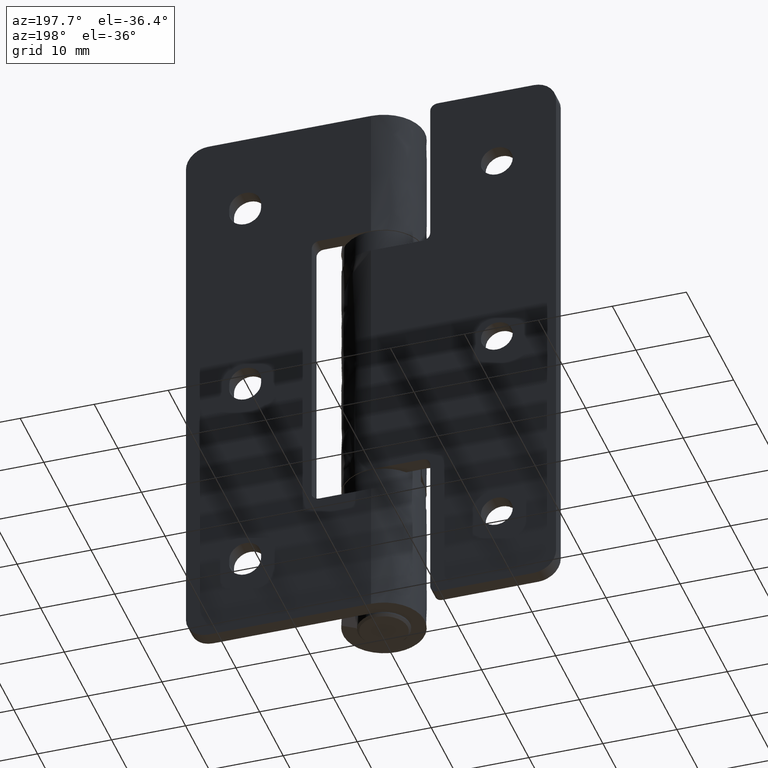
[diagram: clean part render]
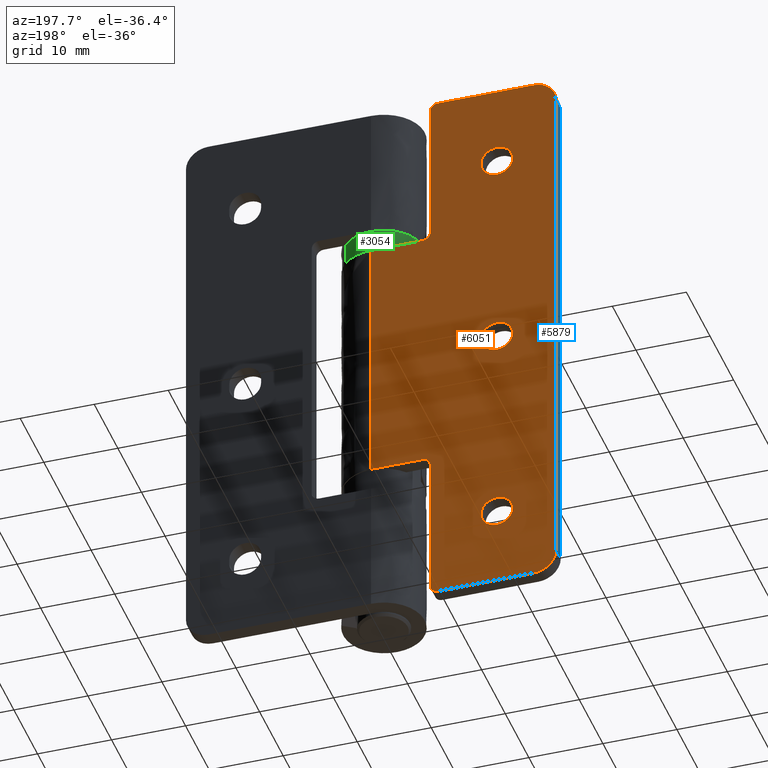
[diagram: same view with three faces highlighted in distinct colors, each labeled with its STEP entity id]
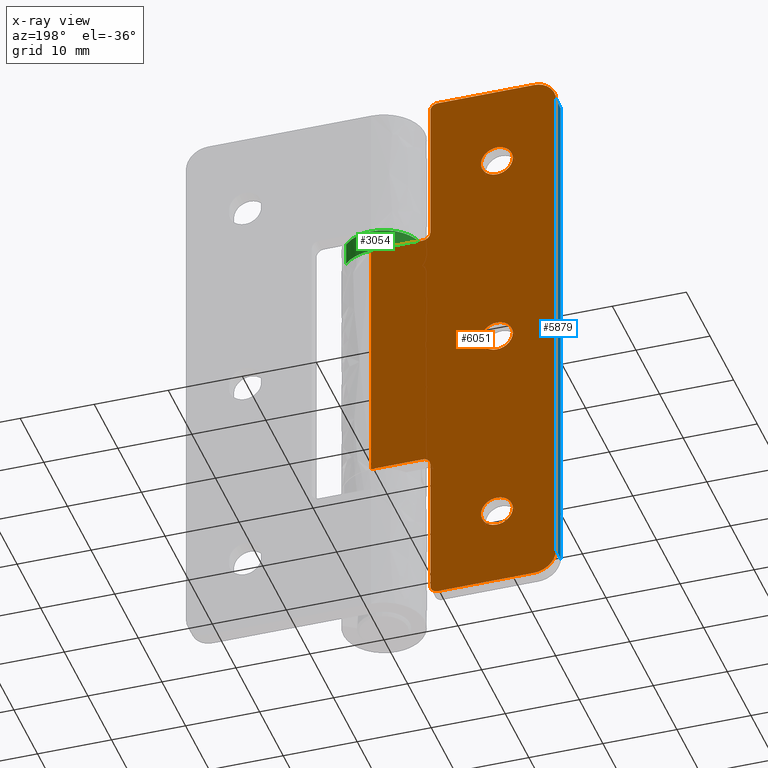
[diagram: x-ray of the same camera — body ghosted, the three highlighted faces saturated]
A machine part, auxiliary view with three faces highlighted in distinct colors.
The next image is the same camera in x-ray (body ghosted, the three faces saturated) — at least one of them is partly hidden behind the body in this view.
Their STEP definitions:

[orange] entity #6051 — the highlighted face is a freeform B-spline surface patch.
#4969=CARTESIAN_POINT('',(-15.547480945484500,5.500000000000229,37.414853445608173));
#4970=VERTEX_POINT('',#4969);
#4976=CARTESIAN_POINT('',(-16.999998877000081,5.500000000000229,36.850000000000300));
#4977=VERTEX_POINT('',#4976);
#4978=CARTESIAN_POINT('',(-16.999998877000081,5.500000000000229,36.850000000000300));
#4979=CARTESIAN_POINT('',(-16.717539007965659,5.500000000000223,36.849676340151682));
#4980=CARTESIAN_POINT('',(-16.186230449595861,5.500000000000251,36.956407735311053));
#4981=CARTESIAN_POINT('',(-15.731095294132510,5.500000000000215,37.246348218408400));
#4982=CARTESIAN_POINT('',(-15.547480945484500,5.500000000000229,37.414853445608173));
#4983=B_SPLINE_CURVE_WITH_KNOTS('',3,(#4978,#4979,#4980,#4981,#4982),.UNSPECIFIED.,.F.,.U.,(4,1,4),(0.000000028332201,0.847246262644758,1.594829172264955),.UNSPECIFIED.);
#4984=EDGE_CURVE('',#4977,#4970,#4983,.T.);
#4986=CARTESIAN_POINT('',(-19.149999999999999,5.500000000000229,39.0));
#4987=VERTEX_POINT('',#4986);
#4988=CARTESIAN_POINT('',(-19.149999999999999,5.500000000000229,39.0));
#4989=CARTESIAN_POINT('',(-19.150196301402779,5.500000000000226,38.753710343611750));
#4990=CARTESIAN_POINT('',(-19.088863383041961,5.500000000000235,38.402051418261728));
#4991=CARTESIAN_POINT('',(-18.888701359350758,5.500000000000229,37.950566378920144));
#4992=CARTESIAN_POINT('',(-18.672690833419349,5.500000000000224,37.627256662800328));
#4993=CARTESIAN_POINT('',(-18.385230024619212,5.500000000000233,37.339828051271468));
#4994=CARTESIAN_POINT('',(-18.006755906459759,5.500000000000276,37.080076261352261));
#4995=CARTESIAN_POINT('',(-17.545269801628908,5.500000000000118,36.895561486111831));
#4996=CARTESIAN_POINT('',(-17.175892411357260,5.500000000000297,36.849963361419569));
#4997=CARTESIAN_POINT('',(-16.999998877000081,5.500000000000229,36.850000000000300));
#4998=B_SPLINE_CURVE_WITH_KNOTS('',3,(#4988,#4989,#4990,#4991,#4992,#4993,#4994,#4995,#4996,#4997),.UNSPECIFIED.,.F.,.U.,(4,1,1,1,1,1,1,4),(0.000000057722211,0.738783703045975,1.055414240958711,1.477582446767213,1.899713102237543,2.269111085663024,2.849608437156288,3.377297483277404),.UNSPECIFIED.);
#4999=EDGE_CURVE('',#4987,#4977,#4998,.T.);
#5001=CARTESIAN_POINT('',(-18.452519054515509,5.500000000000229,40.585146554391827));
#5002=VERTEX_POINT('',#5001);
#5003=CARTESIAN_POINT('',(-18.452519054515509,5.500000000000229,40.585146554391827));
#5004=CARTESIAN_POINT('',(-18.658101389684340,5.500000000000230,40.397179347800673));
#5005=CARTESIAN_POINT('',(-18.915678234794900,5.500000000000226,40.046545313151377));
#5006=CARTESIAN_POINT('',(-19.113005175558840,5.500000000000243,39.482716924405487));
#5007=CARTESIAN_POINT('',(-19.150035633539829,5.500000000000212,39.167104527533958));
#5008=CARTESIAN_POINT('',(-19.149999999999999,5.500000000000229,39.0));
#5009=B_SPLINE_CURVE_WITH_KNOTS('',3,(#5003,#5004,#5005,#5006,#5007,#5008),.UNSPECIFIED.,.F.,.U.,(4,1,1,4),(0.000000017024057,0.835532058316047,1.281148529100793,1.782467558109210),.UNSPECIFIED.);
#5010=EDGE_CURVE('',#5002,#4987,#5009,.T.);
#5097=CARTESIAN_POINT('',(-17.000001122999951,5.500000000000229,41.149999999999707));
#5098=VERTEX_POINT('',#5097);
#5099=CARTESIAN_POINT('',(-17.000001122999951,5.500000000000229,41.149999999999707));
#5100=CARTESIAN_POINT('',(-17.215975896201900,5.500000000000229,41.150100517412902));
#5101=CARTESIAN_POINT('',(-17.598006334729639,5.500000000000229,41.091932301606377));
#5102=CARTESIAN_POINT('',(-18.087259226490058,5.500000000000234,40.875034377064793));
#5103=CARTESIAN_POINT('',(-18.342298878183140,5.500000000000220,40.686167603995777));
#5104=CARTESIAN_POINT('',(-18.452519054515509,5.500000000000229,40.585146554391827));
#5105=B_SPLINE_CURVE_WITH_KNOTS('',3,(#5099,#5100,#5101,#5102,#5103,#5104),.UNSPECIFIED.,.F.,.U.,(4,1,1,4),(0.000000028333376,0.647909759516003,1.146282767785366,1.594829172264934),.UNSPECIFIED.);
#5106=EDGE_CURVE('',#5098,#5002,#5105,.T.);
#5108=CARTESIAN_POINT('',(-14.850000000000000,5.500000000000229,39.0));
#5109=VERTEX_POINT('',#5108);
#5110=CARTESIAN_POINT('',(-14.850000000000000,5.500000000000229,39.0));
#5111=CARTESIAN_POINT('',(-14.849903111618930,5.500000000000230,39.211085875443800));
#5112=CARTESIAN_POINT('',(-14.902257354269420,5.500000000000235,39.562816057218122));
#5113=CARTESIAN_POINT('',(-15.118641767844659,5.500000000000224,40.085393079506993));
#5114=CARTESIAN_POINT('',(-15.446986243437239,5.500000000000228,40.528142215299653));
#5115=CARTESIAN_POINT('',(-15.884942041920519,5.500000000000233,40.861277580200628));
#5116=CARTESIAN_POINT('',(-16.402021880095919,5.500000000000225,41.090493572329173));
#5117=CARTESIAN_POINT('',(-16.771321229089061,5.500000000000251,41.150122150036523));
#5118=CARTESIAN_POINT('',(-17.000001122999951,5.500000000000229,41.149999999999707));
#5119=B_SPLINE_CURVE_WITH_KNOTS('',3,(#5110,#5111,#5112,#5113,#5114,#5115,#5116,#5117,#5118),.UNSPECIFIED.,.F.,.U.,(4,1,1,1,1,1,4),(0.000000057717990,0.633238866518724,1.055414240955507,1.688648774640088,2.269111085661566,2.691288542552654,3.377297483277503),.UNSPECIFIED.);
#5120=EDGE_CURVE('',#5109,#5098,#5119,.T.);
#5122=CARTESIAN_POINT('',(-15.547480945484500,5.500000000000229,37.414853445608173));
#5123=CARTESIAN_POINT('',(-15.341892051879309,5.500000000000231,37.602820701437253));
#5124=CARTESIAN_POINT('',(-15.106739558689180,5.500000000000231,37.922963633923906));
#5125=CARTESIAN_POINT('',(-14.895336977247540,5.500000000000229,38.480176448766557));
#5126=CARTESIAN_POINT('',(-14.849922381222230,5.500000000000232,38.795753935088527));
#5127=CARTESIAN_POINT('',(-14.850000000000000,5.500000000000229,39.0));
#5128=B_SPLINE_CURVE_WITH_KNOTS('',3,(#5122,#5123,#5124,#5125,#5126,#5127),.UNSPECIFIED.,.F.,.U.,(4,1,1,4),(0.000000017024288,0.835532058316191,1.169744082390658,1.782467558109206),.UNSPECIFIED.);
#5129=EDGE_CURVE('',#4970,#5109,#5128,.T.);
#5165=CARTESIAN_POINT('',(-15.547480945484500,5.500000000000229,9.414853445608173));
#5166=VERTEX_POINT('',#5165);
#5172=CARTESIAN_POINT('',(-16.999998877000081,5.500000000000229,8.850000000000295));
#5173=VERTEX_POINT('',#5172);
#5174=CARTESIAN_POINT('',(-16.999998877000081,5.500000000000229,8.850000000000295));
#5175=CARTESIAN_POINT('',(-16.784027163710579,5.500000000000230,8.849918031573537));
#5176=CARTESIAN_POINT('',(-16.401988460107891,5.500000000000227,8.908045724052064));
#5177=CARTESIAN_POINT('',(-15.912743152000260,5.500000000000235,9.124973836789650));
#5178=CARTESIAN_POINT('',(-15.657700984849720,5.500000000000223,9.313830695827146));
#5179=CARTESIAN_POINT('',(-15.547480945484500,5.500000000000229,9.414853445608173));
#5180=B_SPLINE_CURVE_WITH_KNOTS('',3,(#5174,#5175,#5176,#5177,#5178,#5179),.UNSPECIFIED.,.F.,.U.,(4,1,1,4),(0.000000028332455,0.647909759515562,1.146282767785301,1.594829172264949),.UNSPECIFIED.);
#5181=EDGE_CURVE('',#5173,#5166,#5180,.T.);
#5183=CARTESIAN_POINT('',(-19.149999999999999,5.500000000000229,11.0));
#5184=VERTEX_POINT('',#5183);
#5185=CARTESIAN_POINT('',(-19.149999999999999,5.500000000000229,11.0));
#5186=CARTESIAN_POINT('',(-19.150314900900650,5.500000000000232,10.718507790207150));
#5187=CARTESIAN_POINT('',(-19.065872465664690,5.500000000000220,10.296603634037821));
#5188=CARTESIAN_POINT('',(-18.799170962461830,5.500000000000230,9.797821791418928));
#5189=CARTESIAN_POINT('',(-18.530077402954340,5.500000000000232,9.469921617326842));
#5190=CARTESIAN_POINT('',(-18.161216568455458,5.500000000000229,9.167144834076138));
#5191=CARTESIAN_POINT('',(-17.650754967407469,5.500000000000231,8.917982903703045));
#5192=CARTESIAN_POINT('',(-17.228677315138640,5.500000000000228,8.849885817655585));
#5193=CARTESIAN_POINT('',(-16.999998877000081,5.500000000000229,8.850000000000295));
#5194=B_SPLINE_CURVE_WITH_KNOTS('',3,(#5185,#5186,#5187,#5188,#5189,#5190,#5191,#5192,#5193),.UNSPECIFIED.,.F.,.U.,(4,1,1,1,1,1,4),(0.000000057721323,0.844324508051732,1.266504055674185,1.688648774641927,2.110792728726397,2.691288542553280,3.377297483277447),.UNSPECIFIED.);
#5195=EDGE_CURVE('',#5184,#5173,#5194,.T.);
#5197=CARTESIAN_POINT('',(-18.452519054515509,5.500000000000229,12.585146554391830));
#5198=VERTEX_POINT('',#5197);
#5199=CARTESIAN_POINT('',(-18.452519054515509,5.500000000000229,12.585146554391830));
#5200=CARTESIAN_POINT('',(-18.658099785226050,5.500000000000235,12.397180529103929));
#5201=CARTESIAN_POINT('',(-18.915681475846011,5.500000000000231,12.046545384961011));
#5202=CARTESIAN_POINT('',(-19.113000864044150,5.500000000000225,11.482715755689290));
#5203=CARTESIAN_POINT('',(-19.150038909188620,5.500000000000232,11.167106198369851));
#5204=CARTESIAN_POINT('',(-19.149999999999999,5.500000000000229,11.0));
#5205=B_SPLINE_CURVE_WITH_KNOTS('',3,(#5199,#5200,#5201,#5202,#5203,#5204),.UNSPECIFIED.,.F.,.U.,(4,1,1,4),(0.000000017024977,0.835532058316226,1.281148529100858,1.782467558109209),.UNSPECIFIED.);
#5206=EDGE_CURVE('',#5198,#5184,#5205,.T.);
#5294=CARTESIAN_POINT('',(-17.000001122999951,5.500000000000229,13.149999999999711));
#5295=VERTEX_POINT('',#5294);
#5296=CARTESIAN_POINT('',(-17.000001122999951,5.500000000000229,13.149999999999711));
#5297=CARTESIAN_POINT('',(-17.249216400324549,5.500000000000222,13.150187363692130));
#5298=CARTESIAN_POINT('',(-17.780658293547908,5.500000000000242,13.056467194227171));
#5299=CARTESIAN_POINT('',(-18.244486319377810,5.500000000000230,12.776213754463569));
#5300=CARTESIAN_POINT('',(-18.452519054515509,5.500000000000229,12.585146554391830));
#5301=B_SPLINE_CURVE_WITH_KNOTS('',3,(#5296,#5297,#5298,#5299,#5300),.UNSPECIFIED.,.F.,.U.,(4,1,4),(0.000000028332493,0.747582937962251,1.594829172264918),.UNSPECIFIED.);
#5302=EDGE_CURVE('',#5295,#5198,#5301,.T.);
#5304=CARTESIAN_POINT('',(-14.850000000000000,5.500000000000229,11.0));
#5305=VERTEX_POINT('',#5304);
#5306=CARTESIAN_POINT('',(-14.850000000000000,5.500000000000229,11.0));
#5307=CARTESIAN_POINT('',(-14.849835681857829,5.500000000000233,11.246273719606741));
#5308=CARTESIAN_POINT('',(-14.923340227031840,5.500000000000219,11.668323205488811));
#5309=CARTESIAN_POINT('',(-15.178384969819369,5.500000000000243,12.174862510093631));
#5310=CARTESIAN_POINT('',(-15.469920389968170,5.500000000000217,12.530078108642840));
#5311=CARTESIAN_POINT('',(-15.838788508038260,5.500000000000232,12.832854934226081));
#5312=CARTESIAN_POINT('',(-16.349242845319541,5.500000000000219,13.082011544454780));
#5313=CARTESIAN_POINT('',(-16.771321229886020,5.500000000000267,13.150126784543501));
#5314=CARTESIAN_POINT('',(-17.000001122999951,5.500000000000229,13.149999999999711));
#5315=B_SPLINE_CURVE_WITH_KNOTS('',3,(#5306,#5307,#5308,#5309,#5310,#5311,#5312,#5313,#5314),.UNSPECIFIED.,.F.,.U.,(4,1,1,1,1,1,4),(0.000000057721970,0.738783703045545,1.266504055674235,1.688648774641929,2.110792728726318,2.691288542553253,3.377297483277453),.UNSPECIFIED.);
#5316=EDGE_CURVE('',#5305,#5295,#5315,.T.);
#5318=CARTESIAN_POINT('',(-15.547480945484500,5.500000000000229,9.414853445608173));
#5319=CARTESIAN_POINT('',(-15.341899170176230,5.500000000000218,9.602820146777312));
#5320=CARTESIAN_POINT('',(-15.084321372546761,5.500000000000263,9.953454858381953));
#5321=CARTESIAN_POINT('',(-14.886995016019050,5.500000000000190,10.517283054209370));
#5322=CARTESIAN_POINT('',(-14.849964525122120,5.500000000000258,10.832895177408281));
#5323=CARTESIAN_POINT('',(-14.850000000000000,5.500000000000229,11.0));
#5324=B_SPLINE_CURVE_WITH_KNOTS('',3,(#5318,#5319,#5320,#5321,#5322,#5323),.UNSPECIFIED.,.F.,.U.,(4,1,1,4),(0.000000017024453,0.835532058315987,1.281148529100776,1.782467558109210),.UNSPECIFIED.);
#5325=EDGE_CURVE('',#5166,#5305,#5324,.T.);
#5361=CARTESIAN_POINT('',(-15.547480945484500,5.500000000000229,65.414853445608173));
#5362=VERTEX_POINT('',#5361);
#5368=CARTESIAN_POINT('',(-16.999998877000081,5.500000000000229,64.850000000000307));
#5369=VERTEX_POINT('',#5368);
#5370=CARTESIAN_POINT('',(-16.999998877000081,5.500000000000229,64.850000000000307));
#5371=CARTESIAN_POINT('',(-16.750788198765019,5.500000000000236,64.849821629516384));
#5372=CARTESIAN_POINT('',(-16.219323407053292,5.500000000000221,64.943495432110183));
#5373=CARTESIAN_POINT('',(-15.755530897106331,5.500000000000235,65.223817431246388));
#5374=CARTESIAN_POINT('',(-15.547480945484500,5.500000000000229,65.414853445608173));
#5375=B_SPLINE_CURVE_WITH_KNOTS('',3,(#5370,#5371,#5372,#5373,#5374),.UNSPECIFIED.,.F.,.U.,(4,1,4),(0.000000028332115,0.747582937962125,1.594829172264943),.UNSPECIFIED.);
#5376=EDGE_CURVE('',#5369,#5362,#5375,.T.);
#5378=CARTESIAN_POINT('',(-19.149999999999999,5.500000000000229,67.0));
#5379=VERTEX_POINT('',#5378);
#5380=CARTESIAN_POINT('',(-19.149999999999999,5.500000000000229,67.0));
#5381=CARTESIAN_POINT('',(-19.150165148715420,5.500000000000231,66.753724761409813));
#5382=CARTESIAN_POINT('',(-19.076658029038541,5.500000000000229,66.331678680488906));
#5383=CARTESIAN_POINT('',(-18.821616485444789,5.500000000000230,65.825136451104328));
#5384=CARTESIAN_POINT('',(-18.530080954492870,5.500000000000240,65.469918551732405));
#5385=CARTESIAN_POINT('',(-18.188519735243379,5.500000000000227,65.189607495256027));
#5386=CARTESIAN_POINT('',(-17.685857509226089,5.500000000000233,64.928732270711834));
#5387=CARTESIAN_POINT('',(-17.263881965725211,5.500000000000218,64.849762787276504));
#5388=CARTESIAN_POINT('',(-16.999998877000081,5.500000000000229,64.850000000000307));
#5389=B_SPLINE_CURVE_WITH_KNOTS('',3,(#5380,#5381,#5382,#5383,#5384,#5385,#5386,#5387,#5388),.UNSPECIFIED.,.F.,.U.,(4,1,1,1,1,1,4),(0.000000057725817,0.738783703047419,1.266504055675519,1.688648774642987,2.110792728727288,2.585743883257214,3.377297483277376),.UNSPECIFIED.);
#5390=EDGE_CURVE('',#5379,#5369,#5389,.T.);
#5392=CARTESIAN_POINT('',(-18.452519054515509,5.500000000000228,68.585146554391827));
#5393=VERTEX_POINT('',#5392);
#5394=CARTESIAN_POINT('',(-18.452519054515509,5.500000000000228,68.585146554391827));
#5395=CARTESIAN_POINT('',(-18.658102450715042,5.500000000000227,68.397180161432644));
#5396=CARTESIAN_POINT('',(-18.915677669092730,5.500000000000229,68.046545362323243));
#5397=CARTESIAN_POINT('',(-19.113005429351588,5.500000000000227,67.482716122210860));
#5398=CARTESIAN_POINT('',(-19.150035257971471,5.500000000000230,67.167106252874149));
#5399=CARTESIAN_POINT('',(-19.149999999999999,5.500000000000229,67.0));
#5400=B_SPLINE_CURVE_WITH_KNOTS('',3,(#5394,#5395,#5396,#5397,#5398,#5399),.UNSPECIFIED.,.F.,.U.,(4,1,1,4),(0.000000017025555,0.835532058316310,1.281148529100995,1.782467558109199),.UNSPECIFIED.);
#5401=EDGE_CURVE('',#5393,#5379,#5400,.T.);
#5489=CARTESIAN_POINT('',(-17.000001122999951,5.500000000000228,69.149999999999721));
#5490=VERTEX_POINT('',#5489);
#5491=CARTESIAN_POINT('',(-17.000001122999951,5.500000000000228,69.149999999999721));
#5492=CARTESIAN_POINT('',(-17.215981916973391,5.500000000000237,69.150110500393225));
#5493=CARTESIAN_POINT('',(-17.564767654146578,5.500000000000215,69.096960891129044));
#5494=CARTESIAN_POINT('',(-18.057742735295520,5.500000000000236,68.891975201385577));
#5495=CARTESIAN_POINT('',(-18.317818739995399,5.500000000000223,68.708639817995802));
#5496=CARTESIAN_POINT('',(-18.452519054515509,5.500000000000228,68.585146554391827));
#5497=B_SPLINE_CURVE_WITH_KNOTS('',3,(#5491,#5492,#5493,#5494,#5495,#5496),.UNSPECIFIED.,.F.,.U.,(4,1,1,4),(0.000000028332360,0.647909759515443,1.046600607803213,1.594829172264936),.UNSPECIFIED.);
#5498=EDGE_CURVE('',#5490,#5393,#5497,.T.);
#5500=CARTESIAN_POINT('',(-14.850000000000000,5.500000000000229,67.0));
#5501=VERTEX_POINT('',#5500);
#5502=CARTESIAN_POINT('',(-14.850000000000000,5.500000000000229,67.0));
#5503=CARTESIAN_POINT('',(-14.849986990049480,5.500000000000230,67.140711880097740));
#5504=CARTESIAN_POINT('',(-14.881170192611080,5.500000000000233,67.457327369907361));
#5505=CARTESIAN_POINT('',(-15.025683425381130,5.500000000000225,67.894864948543884));
#5506=CARTESIAN_POINT('',(-15.243811972127180,5.500000000000235,68.258690388440371));
#5507=CARTESIAN_POINT('',(-15.497257140901690,5.500000000000219,68.552494364241511));
#5508=CARTESIAN_POINT('',(-15.838782097311279,5.500000000000227,68.832860362402371));
#5509=CARTESIAN_POINT('',(-16.349244703787068,5.500000000000233,69.082009465838908));
#5510=CARTESIAN_POINT('',(-16.771321448643960,5.500000000000253,69.150127075767642));
#5511=CARTESIAN_POINT('',(-17.000001122999951,5.500000000000228,69.149999999999721));
#5512=B_SPLINE_CURVE_WITH_KNOTS('',3,(#5502,#5503,#5504,#5505,#5506,#5507,#5508,#5509,#5510,#5511),.UNSPECIFIED.,.F.,.U.,(4,1,1,1,1,1,1,4),(0.000000057726401,0.422145123423234,0.949868354319807,1.372045012490239,1.688648774643703,2.110792728727647,2.691288542554024,3.377297483277410),.UNSPECIFIED.);
#5513=EDGE_CURVE('',#5501,#5490,#5512,.T.);
#5515=CARTESIAN_POINT('',(-15.547480945484500,5.500000000000229,65.414853445608173));
#5516=CARTESIAN_POINT('',(-15.341899290102690,5.500000000000245,65.602820165102898));
#5517=CARTESIAN_POINT('',(-15.084321033579871,5.500000000000188,65.953454835129591));
#5518=CARTESIAN_POINT('',(-14.886995555011231,5.500000000000289,66.517283142230610));
#5519=CARTESIAN_POINT('',(-14.849963843230091,5.500000000000187,66.832894241441650));
#5520=CARTESIAN_POINT('',(-14.850000000000000,5.500000000000229,67.0));
#5521=B_SPLINE_CURVE_WITH_KNOTS('',3,(#5515,#5516,#5517,#5518,#5519,#5520),.UNSPECIFIED.,.F.,.U.,(4,1,1,4),(0.000000017027068,0.835532058317011,1.281148529100942,1.782467558109214),.UNSPECIFIED.);
#5522=EDGE_CURVE('',#5362,#5501,#5521,.T.);
#5557=CARTESIAN_POINT('',(-9.0,5.500000000000229,0.0));
#5558=VERTEX_POINT('',#5557);
#5564=CARTESIAN_POINT('',(-8.0,5.500000000000229,0.999999999999915));
#5565=VERTEX_POINT('',#5564);
#5566=CARTESIAN_POINT('',(-8.0,5.500000000000229,0.999999999999915));
#5567=CARTESIAN_POINT('',(-7.999815948241406,5.500000000000246,0.860888660539468));
#5568=CARTESIAN_POINT('',(-8.050333143350708,5.500000000000252,0.623781137559542));
#5569=CARTESIAN_POINT('',(-8.214074352611142,5.500000000000267,0.365281371980520));
#5570=CARTESIAN_POINT('',(-8.410547553616899,5.500000000000284,0.178196455981690));
#5571=CARTESIAN_POINT('',(-8.664599915572296,5.500000000000221,0.038353219154053));
#5572=CARTESIAN_POINT('',(-8.885455931278516,5.500000000000263,-0.000065769832042));
#5573=CARTESIAN_POINT('',(-9.0,5.500000000000229,0.0));
#5574=B_SPLINE_CURVE_WITH_KNOTS('',3,(#5566,#5567,#5568,#5569,#5570,#5571,#5572,#5573),.UNSPECIFIED.,.F.,.U.,(4,1,1,1,1,4),(0.000000190634222,0.417255613775690,0.711792073891634,0.908118885506224,1.227218004027974,1.570835744366216),.UNSPECIFIED.);
#5575=EDGE_CURVE('',#5565,#5558,#5574,.T.);
#5614=CARTESIAN_POINT('',(-8.0,5.500000000000229,77.0));
#5615=VERTEX_POINT('',#5614);
#5621=CARTESIAN_POINT('',(-9.0,5.500000000000229,78.0));
#5622=VERTEX_POINT('',#5621);
#5623=CARTESIAN_POINT('',(-9.0,5.500000000000229,78.0));
#5624=CARTESIAN_POINT('',(-8.877266397706078,5.500000000000225,78.000108451507430));
#5625=CARTESIAN_POINT('',(-8.640085774690272,5.500000000000230,77.955761091599896));
#5626=CARTESIAN_POINT('',(-8.376584025182886,5.500000000000225,77.797887028194523));
#5627=CARTESIAN_POINT('',(-8.200917595131665,5.500000000000226,77.613237321975546));
#5628=CARTESIAN_POINT('',(-8.049714864853083,5.500000000000242,77.368001097920768));
#5629=CARTESIAN_POINT('',(-7.999761223935395,5.500000000000244,77.147311909529790));
#5630=CARTESIAN_POINT('',(-8.0,5.500000000000229,77.0));
#5631=B_SPLINE_CURVE_WITH_KNOTS('',3,(#5623,#5624,#5625,#5626,#5627,#5628,#5629,#5630),.UNSPECIFIED.,.F.,.U.,(4,1,1,1,1,4),(0.000000190629848,0.368164290177551,0.711792073888968,0.908118885504360,1.129035800120159,1.570835744366328),.UNSPECIFIED.);
#5632=EDGE_CURVE('',#5622,#5615,#5631,.T.);
#5656=CARTESIAN_POINT('',(-25.0,5.500000000000229,75.0));
#5657=VERTEX_POINT('',#5656);
#5658=CARTESIAN_POINT('',(-22.000000000000249,5.500000000000229,78.0));
#5659=VERTEX_POINT('',#5658);
#5660=CARTESIAN_POINT('',(-25.0,5.500000000000229,75.0));
#5661=CARTESIAN_POINT('',(-25.000029461697650,5.500000000000227,75.208617861377462));
#5662=CARTESIAN_POINT('',(-24.960156159635851,5.500000000000234,75.589033270263769));
#5663=CARTESIAN_POINT('',(-24.784975567673531,5.500000000000254,76.166605101730866));
#5664=CARTESIAN_POINT('',(-24.523060273041690,5.500000000000162,76.656610317664928));
#5665=CARTESIAN_POINT('',(-24.166474565209970,5.500000000000298,77.096554098067458));
#5666=CARTESIAN_POINT('',(-23.785909373889581,5.500000000000203,77.428921970342969));
#5667=CARTESIAN_POINT('',(-23.323015647736611,5.500000000000228,77.710251771670428));
#5668=CARTESIAN_POINT('',(-22.736273139867340,5.500000000000251,77.936615156176899));
#5669=CARTESIAN_POINT('',(-22.269987229435721,5.500000000000188,78.000085906247421));
#5670=CARTESIAN_POINT('',(-22.000000000000249,5.500000000000229,78.0));
#5671=B_SPLINE_CURVE_WITH_KNOTS('',3,(#5660,#5661,#5662,#5663,#5664,#5665,#5666,#5667,#5668,#5669,#5670),.UNSPECIFIED.,.F.,.U.,(4,1,1,1,1,1,1,1,4),(0.000000112339982,0.625853452172067,1.141288488457871,1.803989831315576,2.282592096892732,2.834800403711135,3.313414006845090,3.902475667534200,4.712418548635455),.UNSPECIFIED.);
#5672=EDGE_CURVE('',#5657,#5659,#5671,.T.);
#5718=CARTESIAN_POINT('',(-22.000000000000249,5.500000000000229,0.0));
#5719=VERTEX_POINT('',#5718);
#5720=CARTESIAN_POINT('',(-25.0,5.500000000000229,2.999999999999890));
#5721=VERTEX_POINT('',#5720);
#5722=CARTESIAN_POINT('',(-22.000000000000249,5.500000000000229,0.0));
#5723=CARTESIAN_POINT('',(-22.368216871714061,5.500000000000282,-0.000353784434919));
#5724=CARTESIAN_POINT('',(-22.907918597239561,5.500000000000151,0.100706331003966));
#5725=CARTESIAN_POINT('',(-23.594195751483468,5.500000000000268,0.435738619823814));
#5726=CARTESIAN_POINT('',(-24.144542087695481,5.500000000000206,0.854320334101150));
#5727=CARTESIAN_POINT('',(-24.587187438329352,5.500000000000310,1.421531488201872));
#5728=CARTESIAN_POINT('',(-24.916940950512181,5.500000000000095,2.165622902757415));
#5729=CARTESIAN_POINT('',(-25.000191278475260,5.500000000000345,2.680908091960277));
#5730=CARTESIAN_POINT('',(-25.0,5.500000000000229,2.999999999999890));
#5731=B_SPLINE_CURVE_WITH_KNOTS('',3,(#5722,#5723,#5724,#5725,#5726,#5727,#5728,#5729,#5730),.UNSPECIFIED.,.F.,.U.,(4,1,1,1,1,1,4),(0.000000112345897,1.104471261153377,1.619896332899721,2.282592096890881,3.166152209538145,3.755213870227222,4.712418548635380),.UNSPECIFIED.);
#5732=EDGE_CURVE('',#5719,#5721,#5731,.T.);
#5777=CARTESIAN_POINT('',(-8.0,5.500000000000229,20.500000000000298));
#5778=VERTEX_POINT('',#5777);
#5779=CARTESIAN_POINT('',(-8.0,5.500000000000229,0.999999999999915));
#5780=CARTESIAN_POINT('',(-8.0,5.500000000000229,20.500000000000298));
#5781=QUASI_UNIFORM_CURVE('',1,(#5779,#5780),.UNSPECIFIED.,.F.,.U.);
#5782=EDGE_CURVE('',#5565,#5778,#5781,.T.);
#5797=CARTESIAN_POINT('',(-8.0,5.500000000000229,57.500000000000000));
#5798=VERTEX_POINT('',#5797);
#5799=CARTESIAN_POINT('',(-8.0,5.500000000000229,57.500000000000000));
#5800=CARTESIAN_POINT('',(-8.0,5.500000000000229,77.0));
#5801=QUASI_UNIFORM_CURVE('',1,(#5799,#5800),.UNSPECIFIED.,.F.,.U.);
#5802=EDGE_CURVE('',#5798,#5615,#5801,.T.);
#5825=CARTESIAN_POINT('',(-9.0,5.500000000000229,0.0));
#5826=CARTESIAN_POINT('',(-22.000000000000249,5.500000000000229,0.0));
#5827=QUASI_UNIFORM_CURVE('',1,(#5825,#5826),.UNSPECIFIED.,.F.,.U.);
#5828=EDGE_CURVE('',#5558,#5719,#5827,.T.);
#5851=CARTESIAN_POINT('',(-9.0,5.500000000000229,78.0));
#5852=CARTESIAN_POINT('',(-22.000000000000249,5.500000000000229,78.0));
#5853=QUASI_UNIFORM_CURVE('',1,(#5851,#5852),.UNSPECIFIED.,.F.,.U.);
#5854=EDGE_CURVE('',#5622,#5659,#5853,.T.);
#5865=CARTESIAN_POINT('',(-25.0,5.500000000000229,75.0));
#5866=CARTESIAN_POINT('',(-25.0,5.500000000000229,2.999999999999890));
#5867=QUASI_UNIFORM_CURVE('',1,(#5865,#5866),.UNSPECIFIED.,.F.,.U.);
#5868=EDGE_CURVE('',#5657,#5721,#5867,.T.);
#5966=CARTESIAN_POINT('',(-26.248749951545140,5.500000000000229,81.896099848820882));
#5967=CARTESIAN_POINT('',(-26.248749951545140,5.500000000000229,-3.896101940943893));
#5968=CARTESIAN_POINT('',(1.248750622097164,5.500000000000229,81.896099848820867));
#5969=CARTESIAN_POINT('',(1.248750622097164,5.500000000000229,-3.896101940943893));
#5970=B_SPLINE_SURFACE_WITH_KNOTS('',1,1,((#5966,#5968),(#5967,#5969)),.UNSPECIFIED.,.F.,.F.,.U.,(2,2),(2,2),(0.0,85.792201789764775),(0.0,27.497500573642299),.UNSPECIFIED.);
#5971=ORIENTED_EDGE('',*,*,#5854,.F.);
#5972=ORIENTED_EDGE('',*,*,#5632,.T.);
#5973=ORIENTED_EDGE('',*,*,#5802,.F.);
#5974=CARTESIAN_POINT('',(-7.0,5.500000000000229,56.500000000000000));
#5975=VERTEX_POINT('',#5974);
#5976=CARTESIAN_POINT('',(-8.0,5.500000000000229,57.500000000000000));
#5977=CARTESIAN_POINT('',(-8.000110422903001,5.500000000000240,57.377267176395797));
#5978=CARTESIAN_POINT('',(-7.960320262963621,5.500000000000272,57.164637862775422));
#5979=CARTESIAN_POINT('',(-7.797150277637599,5.500000000000275,56.868040054044442));
#5980=CARTESIAN_POINT('',(-7.565514002203454,5.500000000000296,56.652832112738700));
#5981=CARTESIAN_POINT('',(-7.278147166651539,5.500000000000245,56.525567914748770));
#5982=CARTESIAN_POINT('',(-7.089992058980966,5.500000000000241,56.499972935851993));
#5983=CARTESIAN_POINT('',(-7.0,5.500000000000229,56.500000000000000));
#5984=B_SPLINE_CURVE_WITH_KNOTS('',3,(#5976,#5977,#5978,#5979,#5980,#5981,#5982,#5983),.UNSPECIFIED.,.F.,.U.,(4,1,1,1,1,4),(0.000000190633364,0.368164290180335,0.638160933825490,1.006313740651909,1.300856520302933,1.570835744366328),.UNSPECIFIED.);
#5985=EDGE_CURVE('',#5798,#5975,#5984,.T.);
#5986=ORIENTED_EDGE('',*,*,#5985,.T.);
#5987=CARTESIAN_POINT('',(-2.273737E-013,5.500000000000229,56.500000000000000));
#5988=VERTEX_POINT('',#5987);
#5989=CARTESIAN_POINT('',(-2.273737E-013,5.500000000000229,56.500000000000000));
#5990=CARTESIAN_POINT('',(-7.0,5.500000000000229,56.500000000000000));
#5991=QUASI_UNIFORM_CURVE('',1,(#5989,#5990),.UNSPECIFIED.,.F.,.U.);
#5992=EDGE_CURVE('',#5988,#5975,#5991,.T.);
#5993=ORIENTED_EDGE('',*,*,#5992,.F.);
#5994=CARTESIAN_POINT('',(-2.273737E-013,5.500000000000229,21.500000000000298));
#5995=VERTEX_POINT('',#5994);
#5996=CARTESIAN_POINT('',(-2.273737E-013,5.500000000000229,56.500000000000000));
#5997=CARTESIAN_POINT('',(-2.273737E-013,5.500000000000229,21.500000000000298));
#5998=QUASI_UNIFORM_CURVE('',1,(#5996,#5997),.UNSPECIFIED.,.F.,.U.);
#5999=EDGE_CURVE('',#5988,#5995,#5998,.T.);
#6000=ORIENTED_EDGE('',*,*,#5999,.T.);
#6001=CARTESIAN_POINT('',(-7.0,5.500000000000229,21.500000000000298));
#6002=VERTEX_POINT('',#6001);
#6003=CARTESIAN_POINT('',(-7.0,5.500000000000229,21.500000000000298));
#6004=CARTESIAN_POINT('',(-2.273737E-013,5.500000000000229,21.500000000000298));
#6005=QUASI_UNIFORM_CURVE('',1,(#6003,#6004),.UNSPECIFIED.,.F.,.U.);
#6006=EDGE_CURVE('',#6002,#5995,#6005,.T.);
#6007=ORIENTED_EDGE('',*,*,#6006,.F.);
#6008=CARTESIAN_POINT('',(-7.0,5.500000000000229,21.500000000000298));
#6009=CARTESIAN_POINT('',(-7.122727189834089,5.500000000000251,21.500100346066830));
#6010=CARTESIAN_POINT('',(-7.343570353890786,5.500000000000236,21.458823726265820));
#6011=CARTESIAN_POINT('',(-7.595396547412201,5.500000000000282,21.316116451931158));
#6012=CARTESIAN_POINT('',(-7.779963246270017,5.500000000000257,21.140380731884541));
#6013=CARTESIAN_POINT('',(-7.946597793792892,5.500000000000269,20.884351941891548));
#6014=CARTESIAN_POINT('',(-8.000231299488425,5.500000000000237,20.647308058402260));
#6015=CARTESIAN_POINT('',(-8.0,5.500000000000229,20.500000000000298));
#6016=B_SPLINE_CURVE_WITH_KNOTS('',3,(#6008,#6009,#6010,#6011,#6012,#6013,#6014,#6015),.UNSPECIFIED.,.F.,.U.,(4,1,1,1,1,4),(0.000000190633310,0.368164290180587,0.662718768424215,0.859050125890115,1.129035800121427,1.570835744366331),.UNSPECIFIED.);
#6017=EDGE_CURVE('',#6002,#5778,#6016,.T.);
#6018=ORIENTED_EDGE('',*,*,#6017,.T.);
#6019=ORIENTED_EDGE('',*,*,#5782,.F.);
#6020=ORIENTED_EDGE('',*,*,#5575,.T.);
#6021=ORIENTED_EDGE('',*,*,#5828,.T.);
#6022=ORIENTED_EDGE('',*,*,#5732,.T.);
#6023=ORIENTED_EDGE('',*,*,#5868,.F.);
#6024=ORIENTED_EDGE('',*,*,#5672,.T.);
#6025=EDGE_LOOP('',(#5971,#5972,#5973,#5986,#5993,#6000,#6007,#6018,#6019,#6020,#6021,#6022,#6023,#6024));
#6026=FACE_OUTER_BOUND('',#6025,.T.);
#6027=ORIENTED_EDGE('',*,*,#5316,.T.);
#6028=ORIENTED_EDGE('',*,*,#5302,.T.);
#6029=ORIENTED_EDGE('',*,*,#5206,.T.);
#6030=ORIENTED_EDGE('',*,*,#5195,.T.);
#6031=ORIENTED_EDGE('',*,*,#5181,.T.);
#6032=ORIENTED_EDGE('',*,*,#5325,.T.);
#6033=EDGE_LOOP('',(#6027,#6028,#6029,#6030,#6031,#6032));
#6034=FACE_BOUND('',#6033,.T.);
#6035=ORIENTED_EDGE('',*,*,#5513,.T.);
#6036=ORIENTED_EDGE('',*,*,#5498,.T.);
#6037=ORIENTED_EDGE('',*,*,#5401,.T.);
#6038=ORIENTED_EDGE('',*,*,#5390,.T.);
#6039=ORIENTED_EDGE('',*,*,#5376,.T.);
#6040=ORIENTED_EDGE('',*,*,#5522,.T.);
#6041=EDGE_LOOP('',(#6035,#6036,#6037,#6038,#6039,#6040));
#6042=FACE_BOUND('',#6041,.T.);
#6043=ORIENTED_EDGE('',*,*,#5120,.T.);
#6044=ORIENTED_EDGE('',*,*,#5106,.T.);
#6045=ORIENTED_EDGE('',*,*,#5010,.T.);
#6046=ORIENTED_EDGE('',*,*,#4999,.T.);
#6047=ORIENTED_EDGE('',*,*,#4984,.T.);
#6048=ORIENTED_EDGE('',*,*,#5129,.T.);
#6049=EDGE_LOOP('',(#6043,#6044,#6045,#6046,#6047,#6048));
#6050=FACE_BOUND('',#6049,.T.);
#6051=ADVANCED_FACE('',(#6026,#6034,#6042,#6050),#5970,.F.);

[blue] entity #5879 — the highlighted face is a freeform B-spline surface patch.
#5656=CARTESIAN_POINT('',(-25.0,5.500000000000229,75.0));
#5657=VERTEX_POINT('',#5656);
#5674=CARTESIAN_POINT('',(-25.0,3.500000000000230,75.0));
#5675=VERTEX_POINT('',#5674);
#5676=CARTESIAN_POINT('',(-25.0,3.500000000000230,75.0));
#5677=CARTESIAN_POINT('',(-25.0,5.500000000000229,75.0));
#5678=QUASI_UNIFORM_CURVE('',1,(#5676,#5677),.UNSPECIFIED.,.F.,.U.);
#5679=EDGE_CURVE('',#5675,#5657,#5678,.T.);
#5720=CARTESIAN_POINT('',(-25.0,5.500000000000229,2.999999999999890));
#5721=VERTEX_POINT('',#5720);
#5741=CARTESIAN_POINT('',(-25.0,3.500000000000230,2.999999999999890));
#5742=VERTEX_POINT('',#5741);
#5756=CARTESIAN_POINT('',(-25.0,5.500000000000229,2.999999999999890));
#5757=CARTESIAN_POINT('',(-25.0,3.500000000000230,2.999999999999890));
#5758=QUASI_UNIFORM_CURVE('',1,(#5756,#5757),.UNSPECIFIED.,.F.,.U.);
#5759=EDGE_CURVE('',#5721,#5742,#5758,.T.);
#5860=CARTESIAN_POINT('',(-25.0,3.400100003876618,78.596399860450035));
#5861=CARTESIAN_POINT('',(-25.0,3.400100003876618,-0.596401791640638));
#5862=CARTESIAN_POINT('',(-25.0,5.599900049768022,78.596399860450035));
#5863=CARTESIAN_POINT('',(-25.0,5.599900049768022,-0.596401791640638));
#5864=B_SPLINE_SURFACE_WITH_KNOTS('',1,1,((#5860,#5862),(#5861,#5863)),.UNSPECIFIED.,.F.,.F.,.U.,(2,2),(2,2),(0.0,79.192801652090679),(0.0,2.199800045891403),.UNSPECIFIED.);
#5865=CARTESIAN_POINT('',(-25.0,5.500000000000229,75.0));
#5866=CARTESIAN_POINT('',(-25.0,5.500000000000229,2.999999999999890));
#5867=QUASI_UNIFORM_CURVE('',1,(#5865,#5866),.UNSPECIFIED.,.F.,.U.);
#5868=EDGE_CURVE('',#5657,#5721,#5867,.T.);
#5869=ORIENTED_EDGE('',*,*,#5868,.T.);
#5870=ORIENTED_EDGE('',*,*,#5759,.T.);
#5871=CARTESIAN_POINT('',(-25.0,3.500000000000230,75.0));
#5872=CARTESIAN_POINT('',(-25.0,3.500000000000230,2.999999999999890));
#5873=QUASI_UNIFORM_CURVE('',1,(#5871,#5872),.UNSPECIFIED.,.F.,.U.);
#5874=EDGE_CURVE('',#5675,#5742,#5873,.T.);
#5875=ORIENTED_EDGE('',*,*,#5874,.F.);
#5876=ORIENTED_EDGE('',*,*,#5679,.T.);
#5877=EDGE_LOOP('',(#5869,#5870,#5875,#5876));
#5878=FACE_OUTER_BOUND('',#5877,.T.);
#5879=ADVANCED_FACE('',(#5878),#5864,.F.);

[green] entity #3054 — the highlighted face is a freeform B-spline surface patch.
#2627=CARTESIAN_POINT('',(-5.400000000000000,0.0,59.600000000000001));
#2628=VERTEX_POINT('',#2627);
#2629=CARTESIAN_POINT('',(-3.943012842474344,-3.689531925990342,59.600000000000009));
#2630=VERTEX_POINT('',#2629);
#2631=CARTESIAN_POINT('',(-5.400000000000000,0.0,59.600000000000001));
#2632=CARTESIAN_POINT('',(-5.400005030960654,-0.253865098432784,59.600000000000037));
#2633=CARTESIAN_POINT('',(-5.358183010986080,-0.846229012444259,59.599999999999859));
#2634=CARTESIAN_POINT('',(-5.155269297615316,-1.693480320639832,59.600000000000193));
#2635=CARTESIAN_POINT('',(-4.720072966528928,-2.707349653290210,59.599999999999604));
#2636=CARTESIAN_POINT('',(-4.275603632099040,-3.334333099201711,59.600000000000300));
#2637=CARTESIAN_POINT('',(-3.943012842474344,-3.689531925990342,59.600000000000009));
#2638=B_SPLINE_CURVE_WITH_KNOTS('',3,(#2631,#2632,#2633,#2634,#2635,#2636,#2637),.UNSPECIFIED.,.F.,.U.,(4,1,1,1,4),(0.000000020486709,0.761602798251792,1.777086399962441,2.602148742625534,4.061902309349115),.UNSPECIFIED.);
#2639=EDGE_CURVE('',#2628,#2630,#2638,.T.);
#2669=CARTESIAN_POINT('',(3.943012838031218,3.689531930738721,59.599999999999987));
#2670=VERTEX_POINT('',#2669);
#2680=CARTESIAN_POINT('',(-0.000001444360471,5.399999999999807,59.599999999999987));
#2681=VERTEX_POINT('',#2680);
#2682=CARTESIAN_POINT('',(3.943012838031218,3.689531930738721,59.599999999999987));
#2683=CARTESIAN_POINT('',(3.722801623732959,3.924896773921395,59.599999999999980));
#2684=CARTESIAN_POINT('',(3.153912359524014,4.433099349229616,59.600000000000037));
#2685=CARTESIAN_POINT('',(2.227023202192454,4.961392067170885,59.599999999999987));
#2686=CARTESIAN_POINT('',(1.128093093384672,5.317409580964470,59.600000000000009));
#2687=CARTESIAN_POINT('',(0.414419371090310,5.400086477241571,59.600000000000087));
#2688=CARTESIAN_POINT('',(-0.000001444360471,5.399999999999807,59.599999999999987));
#2689=B_SPLINE_CURVE_WITH_KNOTS('',3,(#2682,#2683,#2684,#2685,#2686,#2687,#2688),.UNSPECIFIED.,.F.,.U.,(4,1,1,1,4),(0.000000022925381,0.966972460897283,2.279284095267843,3.177199658944387,4.420452518267636),.UNSPECIFIED.);
#2690=EDGE_CURVE('',#2670,#2681,#2689,.T.);
#2692=CARTESIAN_POINT('',(-0.000001444360471,5.399999999999807,59.599999999999987));
#2693=CARTESIAN_POINT('',(-0.287153944415079,5.400007310362332,59.599999999999952));
#2694=CARTESIAN_POINT('',(-0.994023984968362,5.343550775022121,59.600000000000101));
#2695=CARTESIAN_POINT('',(-2.021103231486811,5.052566043218175,59.599999999999874));
#2696=CARTESIAN_POINT('',(-2.960697679830057,4.550252979064539,59.600000000000072));
#2697=CARTESIAN_POINT('',(-3.656094890436207,4.000614339261754,59.600000000000087));
#2698=CARTESIAN_POINT('',(-4.277997372505724,3.339399676316901,59.599999999999802));
#2699=CARTESIAN_POINT('',(-4.815926466749860,2.523562208574633,59.600000000000570));
#2700=CARTESIAN_POINT('',(-5.277468288999537,1.369440895034254,59.599999999999298));
#2701=CARTESIAN_POINT('',(-5.400205706030193,0.508078011489923,59.600000000000954));
#2702=CARTESIAN_POINT('',(-5.400000000000000,0.0,59.600000000000001));
#2703=B_SPLINE_CURVE_WITH_KNOTS('',3,(#2692,#2693,#2694,#2695,#2696,#2697,#2698,#2699,#2700,#2701,#2702),.UNSPECIFIED.,.F.,.U.,(4,1,1,1,1,1,1,1,4),(0.000000087729543,0.861467272223289,2.120588533906044,3.180888377279149,4.042396208901005,4.771320449976056,5.897877664436704,6.958181357900747,8.482352573459247),.UNSPECIFIED.);
#2704=EDGE_CURVE('',#2681,#2628,#2703,.T.);
#2903=CARTESIAN_POINT('',(-3.943013198097780,-3.689532073261690,56.499999999999979));
#2904=VERTEX_POINT('',#2903);
#2905=CARTESIAN_POINT('',(-3.943013198097780,-3.689532073261690,56.499999999999979));
#2906=CARTESIAN_POINT('',(-3.943012842474344,-3.689531925990342,59.600000000000009));
#2907=QUASI_UNIFORM_CURVE('',1,(#2905,#2906),.UNSPECIFIED.,.F.,.U.);
#2908=EDGE_CURVE('',#2904,#2630,#2907,.T.);
#2928=CARTESIAN_POINT('',(3.943013120300164,3.689532156404218,56.499999999999972));
#2929=VERTEX_POINT('',#2928);
#2941=CARTESIAN_POINT('',(3.943013120300164,3.689532156404218,56.499999999999972));
#2942=CARTESIAN_POINT('',(3.943012838031218,3.689531930738721,59.599999999999987));
#2943=QUASI_UNIFORM_CURVE('',1,(#2941,#2942),.UNSPECIFIED.,.F.,.U.);
#2944=EDGE_CURVE('',#2929,#2670,#2943,.T.);
#2951=CARTESIAN_POINT('',(3.943013151264365,3.689532123312691,43.609999999999999));
#2952=CARTESIAN_POINT('',(0.253481027951674,7.632545274577056,43.609999999999999));
#2953=CARTESIAN_POINT('',(-3.689532123312691,3.943013151264365,43.609999999999999));
#2954=CARTESIAN_POINT('',(-7.632545274577056,0.253481027951674,43.609999999999999));
#2955=CARTESIAN_POINT('',(-3.943013151264365,-3.689532123312691,43.609999999999999));
#2956=CARTESIAN_POINT('',(3.943013151264365,3.689532123312691,59.999749999999999));
#2957=CARTESIAN_POINT('',(0.253481027951674,7.632545274577056,59.999750000000006));
#2958=CARTESIAN_POINT('',(-3.689532123312691,3.943013151264365,59.999749999999999));
#2959=CARTESIAN_POINT('',(-7.632545274577056,0.253481027951674,59.999750000000006));
#2960=CARTESIAN_POINT('',(-3.943013151264365,-3.689532123312691,59.999749999999999));
#2968=(BOUNDED_SURFACE()B_SPLINE_SURFACE(2,1,((#2951,#2956),(#2952,#2957),(#2953,#2958),(#2954,#2959),(#2955,#2960)),.UNSPECIFIED.,.F.,.F.,.U.)B_SPLINE_SURFACE_WITH_KNOTS((3,2,3),(2,2),(0.0,8.947012947258850,17.894025894517700),(0.0,16.389750000000010),.UNSPECIFIED.)GEOMETRIC_REPRESENTATION_ITEM()RATIONAL_B_SPLINE_SURFACE(((1.0,1.0),(0.707106781186548,0.707106781186548),(1.0,1.0),(0.707106781186548,0.707106781186548),(1.0,1.0)))REPRESENTATION_ITEM('')SURFACE());
#2969=ORIENTED_EDGE('',*,*,#2639,.F.);
#2970=ORIENTED_EDGE('',*,*,#2704,.F.);
#2971=ORIENTED_EDGE('',*,*,#2690,.F.);
#2972=ORIENTED_EDGE('',*,*,#2944,.F.);
#2973=CARTESIAN_POINT('',(-4.112177038990420,3.500000000000000,56.500000000000000));
#2974=VERTEX_POINT('',#2973);
#2975=CARTESIAN_POINT('',(3.943013120300164,3.689532156404218,56.499999999999972));
#2976=CARTESIAN_POINT('',(3.684140956513001,3.966282096582840,56.499999999999972));
#2977=CARTESIAN_POINT('',(3.125784051001808,4.449309878478741,56.500000000000021));
#2978=CARTESIAN_POINT('',(2.107658805542317,5.018085599804946,56.500000000000000));
#2979=CARTESIAN_POINT('',(1.079857192566621,5.327309468213642,56.499999999999780));
#2980=CARTESIAN_POINT('',(0.015518949904138,5.428562601376716,56.500000000000163));
#2981=CARTESIAN_POINT('',(-1.051837387538642,5.340122681809294,56.500000000000078));
#2982=CARTESIAN_POINT('',(-2.077224858593310,5.023095142464177,56.499999999999069));
#2983=CARTESIAN_POINT('',(-3.163091946506369,4.433752058348390,56.500000000001130));
#2984=CARTESIAN_POINT('',(-3.774603321604581,3.896971454309536,56.499999999998948));
#2985=CARTESIAN_POINT('',(-4.112177038990420,3.500000000000000,56.500000000000000));
#2986=B_SPLINE_CURVE_WITH_KNOTS('',3,(#2975,#2976,#2977,#2978,#2979,#2980,#2981,#2982,#2983,#2984,#2985),.UNSPECIFIED.,.F.,.U.,(4,1,1,1,1,1,1,1,4),(0.000000077467012,1.136852070132727,2.202689760583692,3.481680124456585,4.334359807239690,5.400117903709916,6.679122144888252,7.531780489416102,9.094976293613692),.UNSPECIFIED.);
#2987=EDGE_CURVE('',#2929,#2974,#2986,.T.);
#2988=ORIENTED_EDGE('',*,*,#2987,.T.);
#2989=CARTESIAN_POINT('',(-4.112177038990420,3.500000000000000,44.0));
#2990=VERTEX_POINT('',#2989);
#2991=CARTESIAN_POINT('',(-4.112177038990420,3.500000000000000,44.0));
#2992=CARTESIAN_POINT('',(-4.112177038990420,3.500000000000000,56.500000000000000));
#2993=QUASI_UNIFORM_CURVE('',1,(#2991,#2992),.UNSPECIFIED.,.F.,.U.);
#2994=EDGE_CURVE('',#2990,#2974,#2993,.T.);
#2995=ORIENTED_EDGE('',*,*,#2994,.F.);
#2996=CARTESIAN_POINT('',(-5.125426811495800,1.700000000000000,44.0));
#2997=VERTEX_POINT('',#2996);
#2998=CARTESIAN_POINT('',(-4.112177038990420,3.500000000000000,44.0));
#2999=CARTESIAN_POINT('',(-4.322686220129086,3.252713233613068,44.000000000000021));
#3000=CARTESIAN_POINT('',(-4.723955231972274,2.684497375977258,43.999999999999943));
#3001=CARTESIAN_POINT('',(-5.009611484909889,2.049354519368533,44.000000000000057));
#3002=CARTESIAN_POINT('',(-5.125426811495800,1.700000000000000,44.0));
#3003=B_SPLINE_CURVE_WITH_KNOTS('',3,(#2998,#2999,#3000,#3001,#3002),.UNSPECIFIED.,.F.,.U.,(4,1,4),(5.196517E-009,0.974260698699248,2.078410797345854),.UNSPECIFIED.);
#3004=EDGE_CURVE('',#2990,#2997,#3003,.T.);
#3005=ORIENTED_EDGE('',*,*,#3004,.T.);
#3006=CARTESIAN_POINT('',(-5.306599664568640,1.0,44.700000000000003));
#3007=VERTEX_POINT('',#3006);
#3008=CARTESIAN_POINT('',(-5.125426811495800,1.700000000000000,44.0));
#3009=CARTESIAN_POINT('',(-5.140235370727156,1.655352831456458,44.0));
#3010=CARTESIAN_POINT('',(-5.154235914486437,1.611190447631210,44.004233697746123));
#3011=CARTESIAN_POINT('',(-5.174106262335648,1.545685937129214,44.016858988944222));
#3012=CARTESIAN_POINT('',(-5.180540889251471,1.523975329080047,44.022120014430527));
#3013=CARTESIAN_POINT('',(-5.193041789622008,1.480817909160516,44.034819445065189));
#3014=CARTESIAN_POINT('',(-5.199137281374579,1.459262351229183,44.042308197148166));
#3015=CARTESIAN_POINT('',(-5.216553200257532,1.396235306120973,44.067718810141123));
#3016=CARTESIAN_POINT('',(-5.227079583871737,1.356163987103385,44.088574470688783));
#3017=CARTESIAN_POINT('',(-5.246247955834891,1.280009422599340,44.138152781841178));
#3018=CARTESIAN_POINT('',(-5.254963717915586,1.243580828984315,44.167277899270573));
#3019=CARTESIAN_POINT('',(-5.270083716012018,1.177860170415598,44.231511692101293));
#3020=CARTESIAN_POINT('',(-5.276561678206017,1.148308013506262,44.266662161124707));
#3021=CARTESIAN_POINT('',(-5.284893413803400,1.109089813399502,44.324019170684863));
#3022=CARTESIAN_POINT('',(-5.287450407673958,1.096812724893568,44.344039355171347));
#3023=CARTESIAN_POINT('',(-5.292034368111062,1.074477646966791,44.384937061251343));
#3024=CARTESIAN_POINT('',(-5.294067592477505,1.064393234167792,44.405823620162863));
#3025=CARTESIAN_POINT('',(-5.299461414127740,1.037326970063973,44.469766926141133));
#3026=CARTESIAN_POINT('',(-5.302125991069754,1.023499636031452,44.514094026340842));
#3027=CARTESIAN_POINT('',(-5.305719346950178,1.004705798496530,44.606299696652663));
#3028=CARTESIAN_POINT('',(-5.306599664568640,1.0,44.652909299967071));
#3029=CARTESIAN_POINT('',(-5.306599664568640,1.0,44.700000000000003));
#3030=B_SPLINE_CURVE_WITH_KNOTS('',3,(#3008,#3009,#3010,#3011,#3012,#3013,#3014,#3015,#3016,#3017,#3018,#3019,#3020,#3021,#3022,#3023,#3024,#3025,#3026,#3027,#3028,#3029),.UNSPECIFIED.,.F.,.U.,(4,2,2,2,2,2,2,2,2,2,4),(0.0,0.125000000000001,0.187500000000001,0.250000000000001,0.375000000000001,0.500000000000001,0.625000000000001,0.687500000000001,0.750000000000001,0.875000000000000,1.0),.UNSPECIFIED.);
#3031=EDGE_CURVE('',#2997,#3007,#3030,.T.);
#3032=ORIENTED_EDGE('',*,*,#3031,.T.);
#3033=CARTESIAN_POINT('',(-5.306599664568640,1.0,56.500000000000000));
#3034=VERTEX_POINT('',#3033);
#3035=CARTESIAN_POINT('',(-5.306599664568640,1.0,44.700000000000003));
#3036=CARTESIAN_POINT('',(-5.306599664568640,1.0,56.500000000000000));
#3037=QUASI_UNIFORM_CURVE('',1,(#3035,#3036),.UNSPECIFIED.,.F.,.U.);
#3038=EDGE_CURVE('',#3007,#3034,#3037,.T.);
#3039=ORIENTED_EDGE('',*,*,#3038,.T.);
#3040=CARTESIAN_POINT('',(-5.306599664568640,1.0,56.500000000000000));
#3041=CARTESIAN_POINT('',(-5.355484211578907,0.740627132656397,56.499999999999837));
#3042=CARTESIAN_POINT('',(-5.430083242695334,0.083209525659712,56.500000000000263));
#3043=CARTESIAN_POINT('',(-5.357344997865569,-0.949845494703952,56.499999999999922));
#3044=CARTESIAN_POINT('',(-5.083169534082208,-1.892526167931594,56.499999999999922));
#3045=CARTESIAN_POINT('',(-4.639962360130059,-2.823579049403162,56.500000000000107));
#3046=CARTESIAN_POINT('',(-4.249693345998464,-3.361969287209154,56.499999999999822));
#3047=CARTESIAN_POINT('',(-3.943013198097780,-3.689532073261690,56.499999999999979));
#3048=B_SPLINE_CURVE_WITH_KNOTS('',3,(#3040,#3041,#3042,#3043,#3044,#3045,#3046,#3047),.UNSPECIFIED.,.F.,.U.,(4,1,1,1,1,4),(0.000000024775448,0.791826651137512,1.979588280468791,3.088141713241920,3.721613742676492,5.067729968935299),.UNSPECIFIED.);
#3049=EDGE_CURVE('',#3034,#2904,#3048,.T.);
#3050=ORIENTED_EDGE('',*,*,#3049,.T.);
#3051=ORIENTED_EDGE('',*,*,#2908,.T.);
#3052=EDGE_LOOP('',(#2969,#2970,#2971,#2972,#2988,#2995,#3005,#3032,#3039,#3050,#3051));
#3053=FACE_OUTER_BOUND('',#3052,.T.);
#3054=ADVANCED_FACE('',(#3053),#2968,.T.);